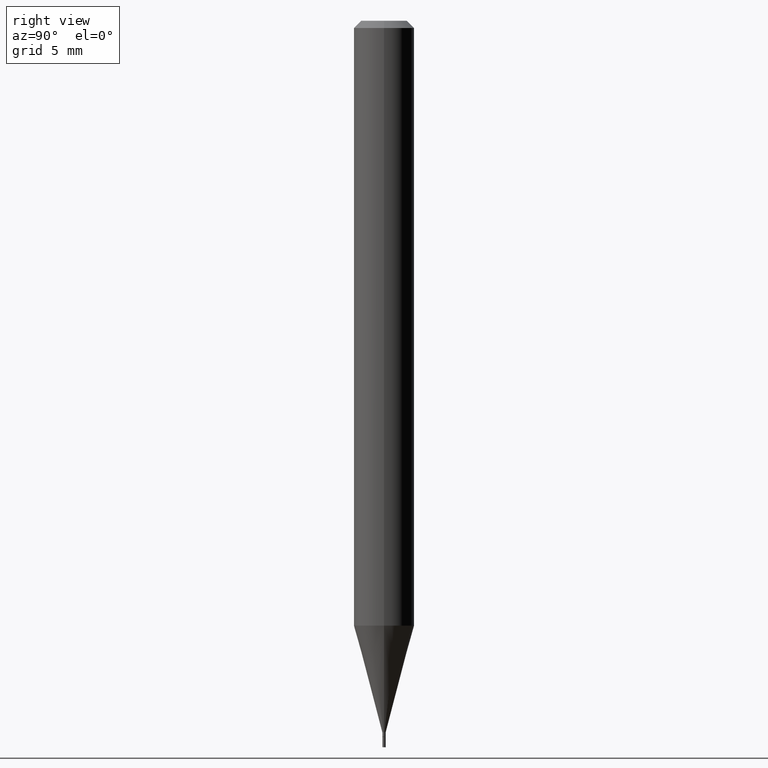
[diagram: clean part render]
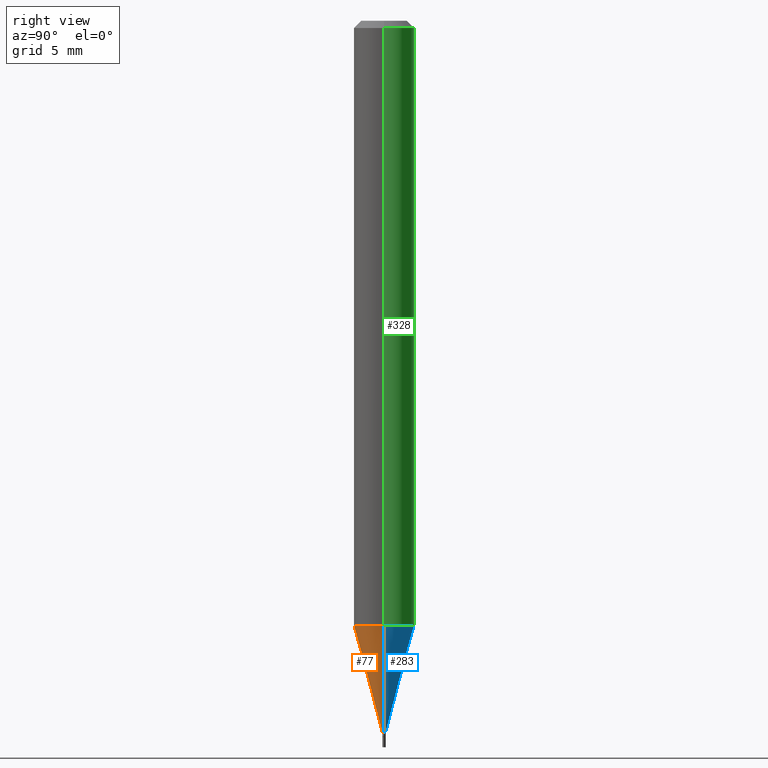
[diagram: same view with three faces highlighted in distinct colors, each labeled with its STEP entity id]
A machine part, right view with three faces highlighted in distinct colors.
Their STEP definitions:

[orange] entity #77 — the highlighted conical surface has half-angle 15 deg.
#5 = CIRCLE ( 'NONE', #188, 0.06250000000000000000 ) ;
#13 = CONICAL_SURFACE ( 'NONE', #393, 0.003499999999999922010, 0.2617993877991500740 ) ;
#22 = VERTEX_POINT ( 'NONE', #200 ) ;
#42 = EDGE_LOOP ( 'NONE', ( #358, #240, #332, #404 ) ) ;
#50 = EDGE_CURVE ( 'NONE', #435, #22, #125, .T. ) ;
#67 = AXIS2_PLACEMENT_3D ( 'NONE', #186, #352, #289 ) ;
#77 = ADVANCED_FACE ( 'NONE', ( #79 ), #13, .T. ) ;
#79 = FACE_OUTER_BOUND ( 'NONE', #42, .T. ) ;
#90 = CARTESIAN_POINT ( 'NONE',  ( 3.053923460138509831E-29, -4.360193327496349299E-15, -1.248809002353436615 ) ) ;
#125 = CIRCLE ( 'NONE', #67, 0.003499999999999922010 ) ;
#128 = CARTESIAN_POINT ( 'NONE',  ( -0.003499999999999922010, -5.104117091008977877E-15, -1.469000000000000083 ) ) ;
#146 = CARTESIAN_POINT ( 'NONE',  ( -0.06250000000000001388, -3.916104117646285894E-15, -1.248809002353436615 ) ) ;
#186 = CARTESIAN_POINT ( 'NONE',  ( 3.592393676285966338E-29, -5.128986086760581011E-15, -1.469000000000000083 ) ) ;
#188 = AXIS2_PLACEMENT_3D ( 'NONE', #90, #442, #335 ) ;
#200 = CARTESIAN_POINT ( 'NONE',  ( 0.003499999999999922010, -5.153426456132482850E-15, -1.469000000000000083 ) ) ;
#206 = DIRECTION ( 'NONE',  ( 0.2588190451025213501, 1.565188264969621968E-15, 0.9659258262890682012 ) ) ;
#230 = VERTEX_POINT ( 'NONE', #417 ) ;
#237 = VECTOR ( 'NONE', #373, 39.37007874015747433 ) ;
#240 = ORIENTED_EDGE ( 'NONE', *, *, #50, .T. ) ;
#256 = DIRECTION ( 'NONE',  ( -2.445468806185136597E-29, 3.491481338843145583E-15, 1.000000000000000000 ) ) ;
#289 = DIRECTION ( 'NONE',  ( 1.000000000000000000, -6.982962677686349541E-15, 0.000000000000000000 ) ) ;
#310 = CARTESIAN_POINT ( 'NONE',  ( 0.003499999999999922010, -5.153426456132482850E-15, -1.469000000000000083 ) ) ;
#332 = ORIENTED_EDGE ( 'NONE', *, *, #443, .T. ) ;
#335 = DIRECTION ( 'NONE',  ( 1.000000000000000000, -6.982962677686270655E-15, 0.000000000000000000 ) ) ;
#345 = CARTESIAN_POINT ( 'NONE',  ( -0.003499999999999922010, -4.510110604327631885E-15, -1.469000000000000083 ) ) ;
#347 = EDGE_CURVE ( 'NONE', #408, #230, #5, .T. ) ;
#352 = DIRECTION ( 'NONE',  ( -2.445468806185136597E-29, 3.491481338843145583E-15, 1.000000000000000000 ) ) ;
#358 = ORIENTED_EDGE ( 'NONE', *, *, #359, .F. ) ;
#359 = EDGE_CURVE ( 'NONE', #435, #408, #367, .T. ) ;
#367 = LINE ( 'NONE', #128, #237 ) ;
#373 = DIRECTION ( 'NONE',  ( -0.2588190451025213501, 5.211531920934551042E-15, 0.9659258262890682012 ) ) ;
#385 = LINE ( 'NONE', #310, #406 ) ;
#393 = AXIS2_PLACEMENT_3D ( 'NONE', #430, #256, #466 ) ;
#404 = ORIENTED_EDGE ( 'NONE', *, *, #347, .F. ) ;
#406 = VECTOR ( 'NONE', #206, 39.37007874015747433 ) ;
#408 = VERTEX_POINT ( 'NONE', #146 ) ;
#417 = CARTESIAN_POINT ( 'NONE',  ( 0.06250000000000001388, -4.796628494851741757E-15, -1.248809002353436615 ) ) ;
#430 = CARTESIAN_POINT ( 'NONE',  ( 3.592393676285966338E-29, -5.128986086760581011E-15, -1.469000000000000083 ) ) ;
#435 = VERTEX_POINT ( 'NONE', #345 ) ;
#442 = DIRECTION ( 'NONE',  ( -2.445468806185136597E-29, 3.491481338843145583E-15, 1.000000000000000000 ) ) ;
#443 = EDGE_CURVE ( 'NONE', #22, #230, #385, .T. ) ;
#466 = DIRECTION ( 'NONE',  ( 1.000000000000000000, -6.982962677686349541E-15, 0.000000000000000000 ) ) ;

[blue] entity #283 — the highlighted conical surface has half-angle 15 deg.
#22 = VERTEX_POINT ( 'NONE', #200 ) ;
#30 = AXIS2_PLACEMENT_3D ( 'NONE', #131, #195, #86 ) ;
#35 = DIRECTION ( 'NONE',  ( -2.445468806185136597E-29, 3.491481338843145583E-15, 1.000000000000000000 ) ) ;
#86 = DIRECTION ( 'NONE',  ( 1.000000000000000000, -6.982962677686349541E-15, 0.000000000000000000 ) ) ;
#97 = EDGE_CURVE ( 'NONE', #230, #408, #149, .T. ) ;
#99 = DIRECTION ( 'NONE',  ( -2.445468806185136597E-29, 3.491481338843145583E-15, 1.000000000000000000 ) ) ;
#111 = CARTESIAN_POINT ( 'NONE',  ( 3.053923460138509831E-29, -4.360193327496349299E-15, -1.248809002353436615 ) ) ;
#114 = DIRECTION ( 'NONE',  ( 1.000000000000000000, -6.982962677686270655E-15, 0.000000000000000000 ) ) ;
#128 = CARTESIAN_POINT ( 'NONE',  ( -0.003499999999999922010, -5.104117091008977877E-15, -1.469000000000000083 ) ) ;
#131 = CARTESIAN_POINT ( 'NONE',  ( 3.592393676285966338E-29, -5.128986086760581011E-15, -1.469000000000000083 ) ) ;
#138 = ORIENTED_EDGE ( 'NONE', *, *, #411, .T. ) ;
#146 = CARTESIAN_POINT ( 'NONE',  ( -0.06250000000000001388, -3.916104117646285894E-15, -1.248809002353436615 ) ) ;
#149 = CIRCLE ( 'NONE', #196, 0.06250000000000000000 ) ;
#195 = DIRECTION ( 'NONE',  ( -2.445468806185136597E-29, 3.491481338843145583E-15, 1.000000000000000000 ) ) ;
#196 = AXIS2_PLACEMENT_3D ( 'NONE', #111, #35, #114 ) ;
#200 = CARTESIAN_POINT ( 'NONE',  ( 0.003499999999999922010, -5.153426456132482850E-15, -1.469000000000000083 ) ) ;
#201 = FACE_OUTER_BOUND ( 'NONE', #277, .T. ) ;
#206 = DIRECTION ( 'NONE',  ( 0.2588190451025213501, 1.565188264969621968E-15, 0.9659258262890682012 ) ) ;
#230 = VERTEX_POINT ( 'NONE', #417 ) ;
#237 = VECTOR ( 'NONE', #373, 39.37007874015747433 ) ;
#246 = ORIENTED_EDGE ( 'NONE', *, *, #97, .F. ) ;
#251 = AXIS2_PLACEMENT_3D ( 'NONE', #380, #99, #420 ) ;
#277 = EDGE_LOOP ( 'NONE', ( #138, #336, #246, #326 ) ) ;
#283 = ADVANCED_FACE ( 'NONE', ( #201 ), #426, .T. ) ;
#310 = CARTESIAN_POINT ( 'NONE',  ( 0.003499999999999922010, -5.153426456132482850E-15, -1.469000000000000083 ) ) ;
#326 = ORIENTED_EDGE ( 'NONE', *, *, #443, .F. ) ;
#336 = ORIENTED_EDGE ( 'NONE', *, *, #359, .T. ) ;
#345 = CARTESIAN_POINT ( 'NONE',  ( -0.003499999999999922010, -4.510110604327631885E-15, -1.469000000000000083 ) ) ;
#359 = EDGE_CURVE ( 'NONE', #435, #408, #367, .T. ) ;
#367 = LINE ( 'NONE', #128, #237 ) ;
#373 = DIRECTION ( 'NONE',  ( -0.2588190451025213501, 5.211531920934551042E-15, 0.9659258262890682012 ) ) ;
#380 = CARTESIAN_POINT ( 'NONE',  ( 3.592393676285966338E-29, -5.128986086760581011E-15, -1.469000000000000083 ) ) ;
#385 = LINE ( 'NONE', #310, #406 ) ;
#394 = CIRCLE ( 'NONE', #251, 0.003499999999999922010 ) ;
#406 = VECTOR ( 'NONE', #206, 39.37007874015747433 ) ;
#408 = VERTEX_POINT ( 'NONE', #146 ) ;
#411 = EDGE_CURVE ( 'NONE', #22, #435, #394, .T. ) ;
#417 = CARTESIAN_POINT ( 'NONE',  ( 0.06250000000000001388, -4.796628494851741757E-15, -1.248809002353436615 ) ) ;
#420 = DIRECTION ( 'NONE',  ( 1.000000000000000000, -6.982962677686349541E-15, 0.000000000000000000 ) ) ;
#426 = CONICAL_SURFACE ( 'NONE', #30, 0.003499999999999922010, 0.2617993877991500740 ) ;
#435 = VERTEX_POINT ( 'NONE', #345 ) ;
#443 = EDGE_CURVE ( 'NONE', #22, #230, #385, .T. ) ;

[green] entity #328 — the highlighted cylindrical surface (edge-blend (fillet) strip) has radius 1.5875 mm, axis along (-0, 0, 1).
#11 = DIRECTION ( 'NONE',  ( -2.445468806185136597E-29, 3.491481338843145583E-15, 1.000000000000000000 ) ) ;
#12 = ORIENTED_EDGE ( 'NONE', *, *, #222, .T. ) ;
#25 = ORIENTED_EDGE ( 'NONE', *, *, #97, .T. ) ;
#29 = AXIS2_PLACEMENT_3D ( 'NONE', #118, #317, #355 ) ;
#35 = DIRECTION ( 'NONE',  ( -2.445468806185136597E-29, 3.491481338843145583E-15, 1.000000000000000000 ) ) ;
#44 = LINE ( 'NONE', #323, #109 ) ;
#47 = DIRECTION ( 'NONE',  ( -2.445468806185136877E-29, 3.491481338843145188E-15, 1.000000000000000000 ) ) ;
#87 = DIRECTION ( 'NONE',  ( 1.000000000000000000, -6.982962677686266711E-15, 4.876176775795935793E-29 ) ) ;
#97 = EDGE_CURVE ( 'NONE', #230, #408, #149, .T. ) ;
#107 = CARTESIAN_POINT ( 'NONE',  ( -0.06250000000000000000, -1.762193563939435770E-15, -0.01499999999999999944 ) ) ;
#109 = VECTOR ( 'NONE', #47, 39.37007874015748143 ) ;
#111 = CARTESIAN_POINT ( 'NONE',  ( 3.053923460138509831E-29, -4.360193327496349299E-15, -1.248809002353436615 ) ) ;
#114 = DIRECTION ( 'NONE',  ( 1.000000000000000000, -6.982962677686270655E-15, 0.000000000000000000 ) ) ;
#118 = CARTESIAN_POINT ( 'NONE',  ( 3.668203209277705088E-31, -5.237222008264718399E-17, -0.01499999999999999944 ) ) ;
#120 = EDGE_CURVE ( 'NONE', #324, #416, #236, .T. ) ;
#124 = DIRECTION ( 'NONE',  ( -2.445468806185136877E-29, 3.491481338843145188E-15, 1.000000000000000000 ) ) ;
#146 = CARTESIAN_POINT ( 'NONE',  ( -0.06250000000000001388, -3.916104117646285894E-15, -1.248809002353436615 ) ) ;
#149 = CIRCLE ( 'NONE', #196, 0.06250000000000000000 ) ;
#161 = FACE_OUTER_BOUND ( 'NONE', #242, .T. ) ;
#193 = LINE ( 'NONE', #444, #414 ) ;
#196 = AXIS2_PLACEMENT_3D ( 'NONE', #111, #35, #114 ) ;
#222 = EDGE_CURVE ( 'NONE', #408, #416, #44, .T. ) ;
#230 = VERTEX_POINT ( 'NONE', #417 ) ;
#236 = CIRCLE ( 'NONE', #29, 0.06250000000000000000 ) ;
#239 = CARTESIAN_POINT ( 'NONE',  ( 0.000000000000000000, 0.000000000000000000, 0.000000000000000000 ) ) ;
#242 = EDGE_LOOP ( 'NONE', ( #25, #12, #419, #368 ) ) ;
#268 = CARTESIAN_POINT ( 'NONE',  ( 0.06250000000000000000, -4.888073874380388472E-16, -0.01499999999999999944 ) ) ;
#317 = DIRECTION ( 'NONE',  ( -2.445468806185136597E-29, 3.491481338843145583E-15, 1.000000000000000000 ) ) ;
#319 = AXIS2_PLACEMENT_3D ( 'NONE', #239, #11, #87 ) ;
#322 = EDGE_CURVE ( 'NONE', #230, #324, #193, .T. ) ;
#323 = CARTESIAN_POINT ( 'NONE',  ( -0.06250000000000000000, 4.440892098500626162E-16, -3.074334431409316114E-30 ) ) ;
#324 = VERTEX_POINT ( 'NONE', #268 ) ;
#328 = ADVANCED_FACE ( 'NONE', ( #161 ), #338, .T. ) ;
#338 = CYLINDRICAL_SURFACE ( 'NONE', #319, 0.06250000000000000000 ) ;
#355 = DIRECTION ( 'NONE',  ( 1.000000000000000000, -6.982962677686266711E-15, 0.000000000000000000 ) ) ;
#368 = ORIENTED_EDGE ( 'NONE', *, *, #322, .F. ) ;
#408 = VERTEX_POINT ( 'NONE', #146 ) ;
#414 = VECTOR ( 'NONE', #124, 39.37007874015748143 ) ;
#416 = VERTEX_POINT ( 'NONE', #107 ) ;
#417 = CARTESIAN_POINT ( 'NONE',  ( 0.06250000000000001388, -4.796628494851741757E-15, -1.248809002353436615 ) ) ;
#419 = ORIENTED_EDGE ( 'NONE', *, *, #120, .F. ) ;
#444 = CARTESIAN_POINT ( 'NONE',  ( 0.06250000000000000000, -4.364351673553916694E-16, 3.047610484872459871E-30 ) ) ;